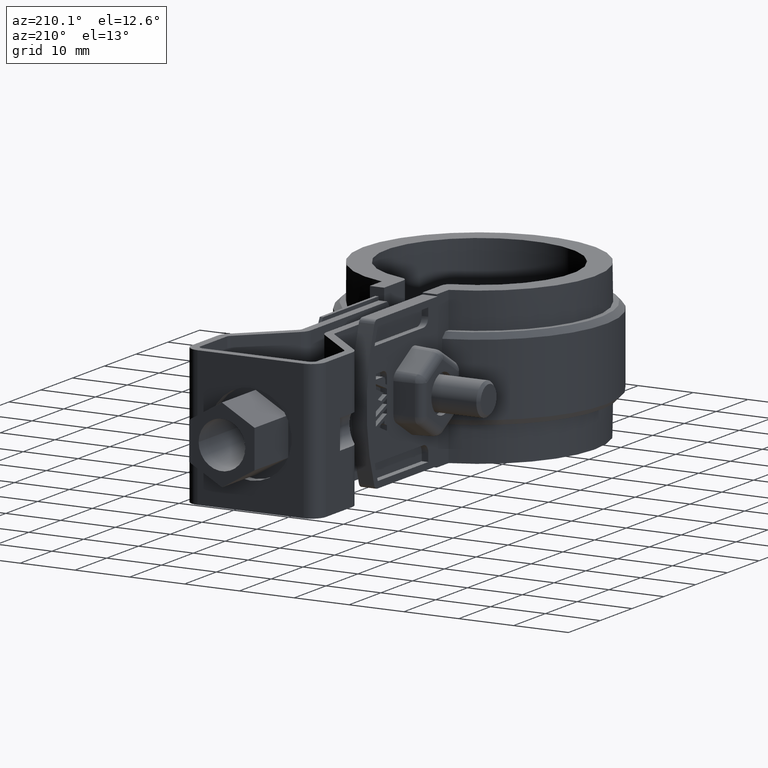
[diagram: clean part render]
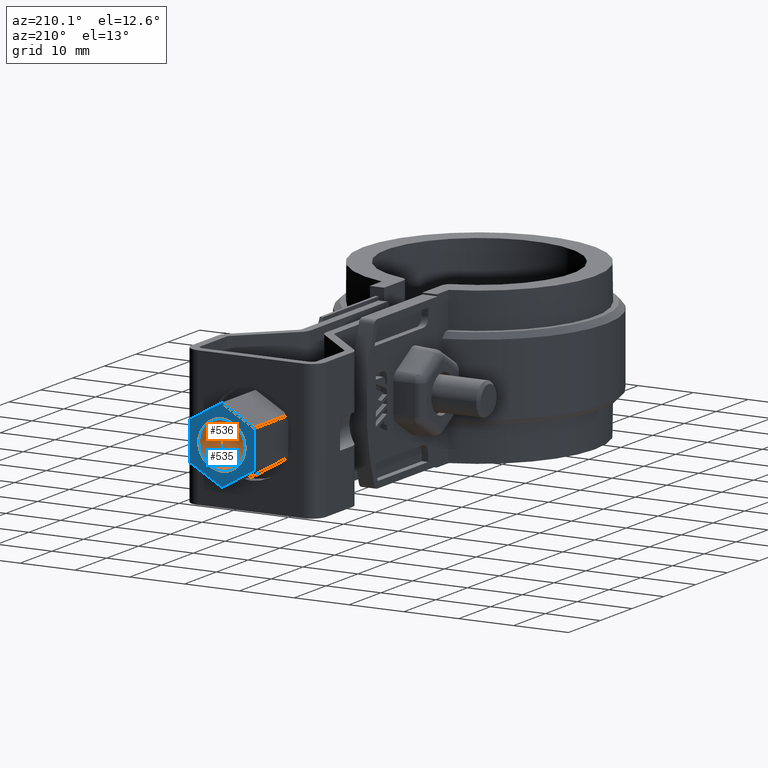
[diagram: same view with the hole feature highlighted: cylindrical wall and planar end face, labeled with their STEP entity ids]
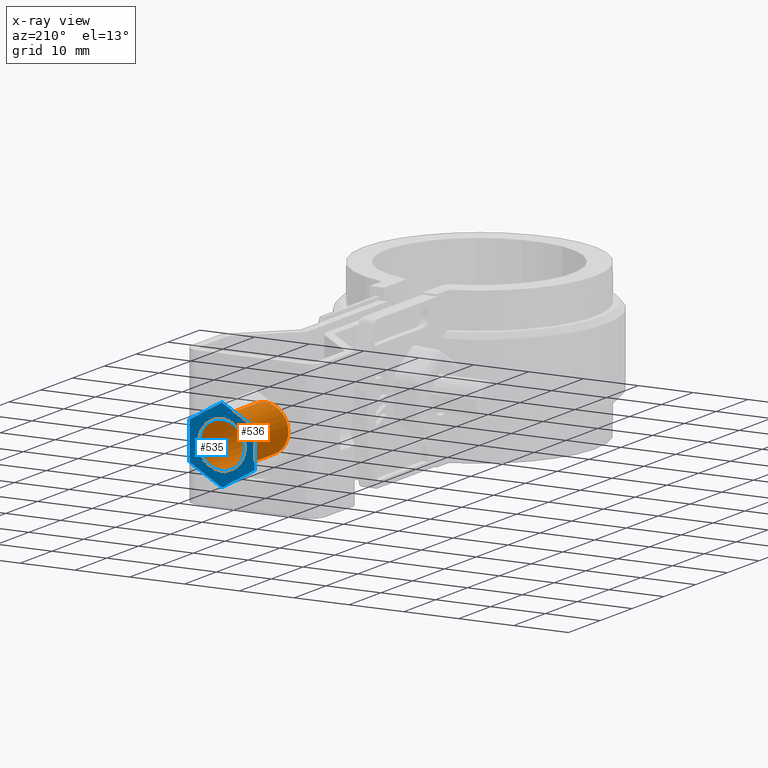
[diagram: x-ray of the same camera — body ghosted, the hole faces saturated]
A machine part, auxiliary view. The highlighted faces form one hole feature of diameter 8.5 mm: the cylindrical wall (entity #536, orange) and its adjacent planar end face (entity #535, blue) — they share a circular edge in the B-rep.
The next image is the same camera in x-ray (body ghosted, the hole faces saturated) — the bore reads through the body.
Wall:
#536 = ADVANCED_FACE( '', ( #1060, #1061 ), #1062, .F. );
#1060 = FACE_OUTER_BOUND( '', #2153, .T. );
#1061 = FACE_OUTER_BOUND( '', #2154, .T. );
#1062 = CYLINDRICAL_SURFACE( '', #2155, 4.25000000000000 );
#2153 = EDGE_LOOP( '', ( #5061 ) );
#2154 = EDGE_LOOP( '', ( #5062 ) );
#2155 = AXIS2_PLACEMENT_3D( '', #5063, #5064, #5065 );
#5061 = ORIENTED_EDGE( '', *, *, #6856, .F. );
#5062 = ORIENTED_EDGE( '', *, *, #6865, .F. );
#5063 = CARTESIAN_POINT( '', ( 8.67759262360434E-007, 63.1543599991873, -12.4999978051009 ) );
#5064 = DIRECTION( '', ( 6.88262000006329E-009, 1.00000000000000, 1.66499459745878E-008 ) );
#5065 = DIRECTION( '', ( 1.00000000000000, -6.88261999302233E-009, -4.22881542217636E-010 ) );
#6856 = EDGE_CURVE( '', #8112, #8112, #8113, .T. );
#6865 = EDGE_CURVE( '', #8127, #8127, #8128, .T. );
#8112 = VERTEX_POINT( '', #11447 );
#8113 = CIRCLE( '', #11448, 4.25000000000000 );
#8127 = VERTEX_POINT( '', #11470 );
#8128 = CIRCLE( '', #11471, 4.25000000000000 );
#11447 = CARTESIAN_POINT( '', ( 4.25000089701040, 67.4043599699683, -12.4999977361359 ) );
#11448 = AXIS2_PLACEMENT_3D( '', #13175, #13176, #13177 );
#11470 = CARTESIAN_POINT( '', ( 4.25000099061403, 81.0043599699683, -12.4999975096967 ) );
#11471 = AXIS2_PLACEMENT_3D( '', #13186, #13187, #13188 );
#13175 = CARTESIAN_POINT( '', ( 8.97010397360924E-007, 67.4043599992195, -12.4999977343387 ) );
#13176 = DIRECTION( '', ( 6.88262000006329E-009, 1.00000000000000, 1.66499459745878E-008 ) );
#13177 = DIRECTION( '', ( 1.00000000000000, -6.88261999302233E-009, -4.22881875284543E-010 ) );
#13186 = CARTESIAN_POINT( '', ( 9.90614029361785E-007, 81.0043599992195, -12.4999975078994 ) );
#13187 = DIRECTION( '', ( -6.88262000006329E-009, -1.00000000000000, -1.66499459745878E-008 ) );
#13188 = DIRECTION( '', ( 1.00000000000000, -6.88261999302233E-009, -4.22881542217636E-010 ) );
End face:
#535 = ADVANCED_FACE( '', ( #1057, #1058 ), #1059, .T. );
#1057 = FACE_OUTER_BOUND( '', #2150, .T. );
#1058 = FACE_BOUND( '', #2151, .T. );
#1059 = PLANE( '', #2152 );
#2150 = EDGE_LOOP( '', ( #5051, #5052, #5053, #5054, #5055, #5056 ) );
#2151 = EDGE_LOOP( '', ( #5057 ) );
#2152 = AXIS2_PLACEMENT_3D( '', #5058, #5059, #5060 );
#5051 = ORIENTED_EDGE( '', *, *, #6850, .T. );
#5052 = ORIENTED_EDGE( '', *, *, #6854, .T. );
#5053 = ORIENTED_EDGE( '', *, *, #6862, .T. );
#5054 = ORIENTED_EDGE( '', *, *, #6859, .T. );
#5055 = ORIENTED_EDGE( '', *, *, #6863, .T. );
#5056 = ORIENTED_EDGE( '', *, *, #6864, .T. );
#5057 = ORIENTED_EDGE( '', *, *, #6865, .T. );
#5058 = CARTESIAN_POINT( '', ( 5.95000098916133, 81.0043600154644, -15.9352316120938 ) );
#5059 = DIRECTION( '', ( 6.88262000006329E-009, 1.00000000000000, 1.66499459745878E-008 ) );
#5060 = DIRECTION( '', ( 0.924154293071134, 0.000000000000000, -0.382019426990556 ) );
#6850 = EDGE_CURVE( '', #8102, #8100, #8103, .T. );
#6854 = EDGE_CURVE( '', #8100, #8107, #8109, .T. );
#6859 = EDGE_CURVE( '', #8119, #8117, #8120, .T. );
#6862 = EDGE_CURVE( '', #8107, #8119, #8123, .T. );
#6863 = EDGE_CURVE( '', #8117, #8124, #8125, .T. );
#6864 = EDGE_CURVE( '', #8124, #8102, #8126, .T. );
#6865 = EDGE_CURVE( '', #8127, #8127, #8128, .T. );
#8100 = VERTEX_POINT( '', #11429 );
#8102 = VERTEX_POINT( '', #11432 );
#8103 = LINE( '', #11433, #11434 );
#8107 = VERTEX_POINT( '', #11440 );
#8109 = LINE( '', #11443, #11444 );
#8117 = VERTEX_POINT( '', #11453 );
#8119 = VERTEX_POINT( '', #11456 );
#8120 = LINE( '', #11457, #11458 );
#8123 = LINE( '', #11463, #11464 );
#8124 = VERTEX_POINT( '', #11465 );
#8125 = LINE( '', #11466, #11467 );
#8126 = LINE( '', #11468, #11469 );
#8127 = VERTEX_POINT( '', #11470 );
#8128 = CIRCLE( '', #11471, 4.25000000000000 );
#11429 = CARTESIAN_POINT( '', ( 5.95000098916134, 81.0043600154644, -15.9352316120938 ) );
#11432 = CARTESIAN_POINT( '', ( 5.95000099206673, 81.0043599010714, -9.06476340873727 ) );
#11433 = CARTESIAN_POINT( '', ( 5.95000099206673, 81.0043599010714, -9.06476340873727 ) );
#11434 = VECTOR( '', #13167, 1000.00000000000 );
#11440 = CARTESIAN_POINT( '', ( 9.87708636706956E-007, 81.0043601136124, -19.3704657112560 ) );
#11443 = CARTESIAN_POINT( '', ( 5.95000098916134, 81.0043600154644, -15.9352316120938 ) );
#11444 = VECTOR( '', #13171, 1000.00000000000 );
#11453 = CARTESIAN_POINT( '', ( -5.94999900793327, 81.0043599829746, -9.06476340370499 ) );
#11456 = CARTESIAN_POINT( '', ( -5.94999901083867, 81.0043600973675, -15.9352316070615 ) );
#11457 = CARTESIAN_POINT( '', ( -5.94999901083867, 81.0043600973675, -15.9352316070615 ) );
#11458 = VECTOR( '', #13180, 1000.00000000000 );
#11463 = CARTESIAN_POINT( '', ( 9.87708638441679E-007, 81.0043601136124, -19.3704657112560 ) );
#11464 = VECTOR( '', #13183, 1000.00000000000 );
#11465 = CARTESIAN_POINT( '', ( 9.93519421149252E-007, 81.0043598848266, -5.62952930454286 ) );
#11466 = CARTESIAN_POINT( '', ( -5.94999900793328, 81.0043599829746, -9.06476340370498 ) );
#11467 = VECTOR( '', #13184, 1000.00000000000 );
#11468 = CARTESIAN_POINT( '', ( 9.93519427220784E-007, 81.0043598848266, -5.62952930454286 ) );
#11469 = VECTOR( '', #13185, 1000.00000000000 );
#11470 = CARTESIAN_POINT( '', ( 4.25000099061403, 81.0043599699683, -12.4999975096967 ) );
#11471 = AXIS2_PLACEMENT_3D( '', #13186, #13187, #13188 );
#13167 = DIRECTION( '', ( -4.22881372111233E-010, 1.66499459774983E-008, -1.00000000000000 ) );
#13171 = DIRECTION( '', ( -0.866025403995880, 1.42854967473012E-008, -0.499999999633773 ) );
#13180 = DIRECTION( '', ( 4.22881816200443E-010, -1.66499459774983E-008, 1.00000000000000 ) );
#13183 = DIRECTION( '', ( -0.866025403572998, -2.36444923019716E-009, 0.500000000366226 ) );
#13184 = DIRECTION( '', ( 0.866025403995880, -1.42854967473012E-008, 0.499999999633773 ) );
#13185 = DIRECTION( '', ( 0.866025403572998, 2.36444923019716E-009, -0.500000000366226 ) );
#13186 = CARTESIAN_POINT( '', ( 9.90614029361785E-007, 81.0043599992195, -12.4999975078994 ) );
#13187 = DIRECTION( '', ( -6.88262000006329E-009, -1.00000000000000, -1.66499459745878E-008 ) );
#13188 = DIRECTION( '', ( 1.00000000000000, -6.88261999302233E-009, -4.22881542217636E-010 ) );